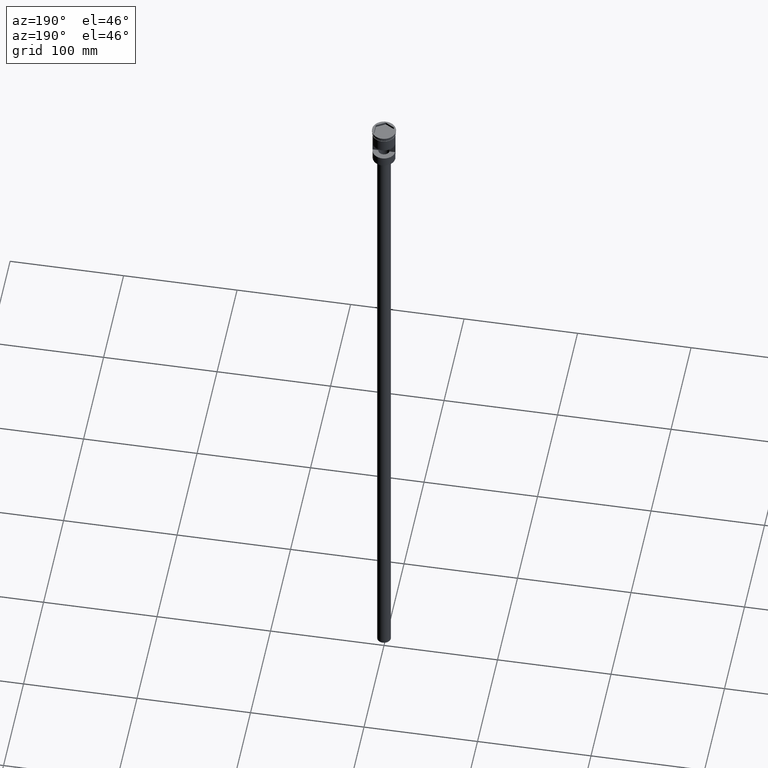
[diagram: clean part render]
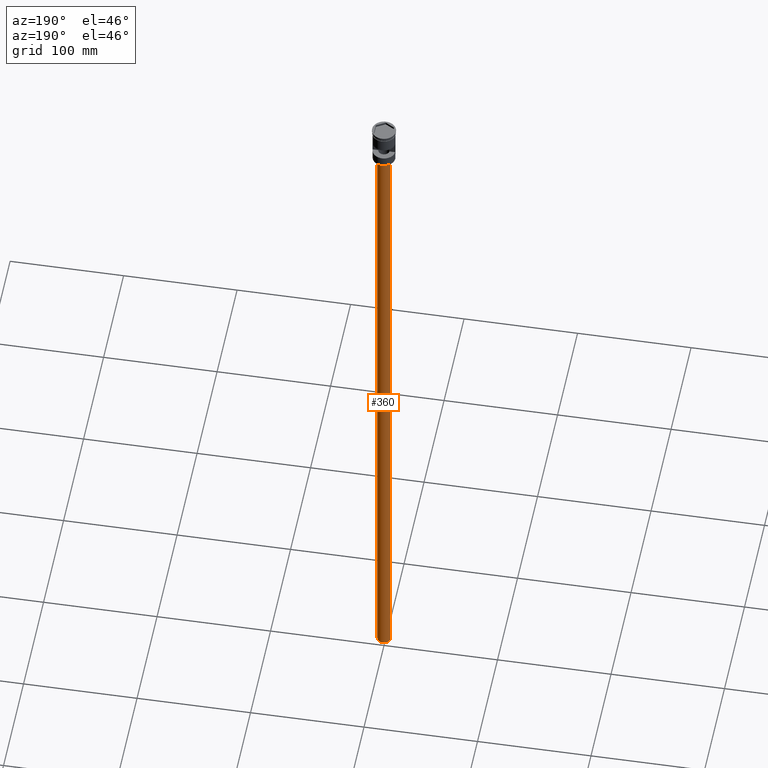
[diagram: same view with one face highlighted and labeled with its STEP entity id]
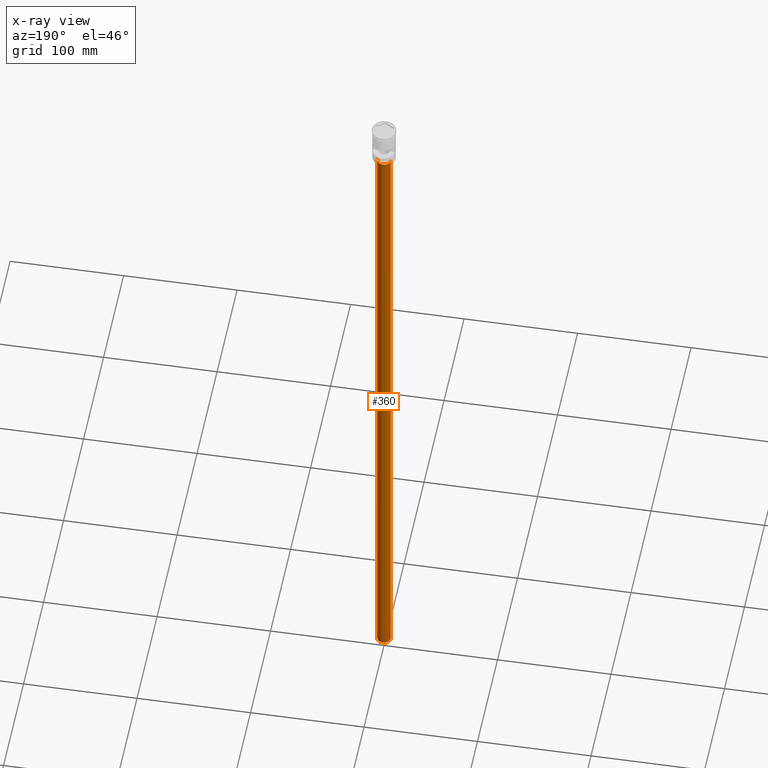
[diagram: x-ray of the same camera — body ghosted, the highlighted face saturated]
A machine part, auxiliary view. The second image highlights one B-rep face of the part: STEP entity #360.
The next image is the same camera in x-ray: the body ghosted, the highlighted face saturated — about 0% of this face is hidden behind the body in this view.
In plain terms, the highlighted cylindrical surface (edge-blend (fillet) strip) has radius 6 mm, axis along (-0, -0, 1).
Its self-contained STEP definition (entity closure, byte-faithful):
#43 = AXIS2_PLACEMENT_3D ( 'NONE', #1476, #857, #512 ) ;
#49 = CARTESIAN_POINT ( 'NONE',  ( -6.000000000000000888, 7.347880794884120722E-16, -37.00000000000000000 ) ) ;
#51 = CARTESIAN_POINT ( 'NONE',  ( 6.000000000000000888, 0.000000000000000000, -634.0000000000000000 ) ) ;
#74 = ORIENTED_EDGE ( 'NONE', *, *, #717, .T. ) ;
#135 = AXIS2_PLACEMENT_3D ( 'NONE', #897, #771, #1279 ) ;
#215 = LINE ( 'NONE', #226, #490 ) ;
#226 = CARTESIAN_POINT ( 'NONE',  ( 6.000000000000000888, 0.000000000000000000, -634.0000000000000000 ) ) ;
#313 = VERTEX_POINT ( 'NONE', #49 ) ;
#324 = CARTESIAN_POINT ( 'NONE',  ( 6.000000000000000888, 0.000000000000000000, -37.00000000000000000 ) ) ;
#336 = VECTOR ( 'NONE', #1238, 1000.000000000000000 ) ;
#360 = ADVANCED_FACE ( 'NONE', ( #1142 ), #405, .T. ) ;
#405 = CYLINDRICAL_SURFACE ( 'NONE', #924, 6.000000000000000888 ) ;
#417 = CIRCLE ( 'NONE', #135, 6.000000000000000888 ) ;
#426 = CARTESIAN_POINT ( 'NONE',  ( -6.000000000000000888, 7.347880794884120722E-16, -634.0000000000000000 ) ) ;
#430 = DIRECTION ( 'NONE',  ( 1.000000000000000000, 0.000000000000000000, 0.000000000000000000 ) ) ;
#490 = VECTOR ( 'NONE', #1437, 1000.000000000000000 ) ;
#497 = EDGE_CURVE ( 'NONE', #1269, #1280, #215, .T. ) ;
#512 = DIRECTION ( 'NONE',  ( -1.000000000000000000, 0.000000000000000000, 0.000000000000000000 ) ) ;
#646 = DIRECTION ( 'NONE',  ( -0.000000000000000000, -0.000000000000000000, 1.000000000000000000 ) ) ;
#717 = EDGE_CURVE ( 'NONE', #1315, #313, #1116, .T. ) ;
#751 = CARTESIAN_POINT ( 'NONE',  ( -6.000000000000000888, 7.347880794884120722E-16, -634.0000000000000000 ) ) ;
#771 = DIRECTION ( 'NONE',  ( 0.000000000000000000, 0.000000000000000000, -1.000000000000000000 ) ) ;
#857 = DIRECTION ( 'NONE',  ( 0.000000000000000000, 0.000000000000000000, -1.000000000000000000 ) ) ;
#864 = EDGE_LOOP ( 'NONE', ( #1205, #74, #1570, #1021 ) ) ;
#897 = CARTESIAN_POINT ( 'NONE',  ( 0.000000000000000000, 0.000000000000000000, -634.0000000000000000 ) ) ;
#924 = AXIS2_PLACEMENT_3D ( 'NONE', #1247, #646, #430 ) ;
#1021 = ORIENTED_EDGE ( 'NONE', *, *, #497, .F. ) ;
#1093 = EDGE_CURVE ( 'NONE', #313, #1280, #1220, .T. ) ;
#1116 = LINE ( 'NONE', #751, #336 ) ;
#1142 = FACE_OUTER_BOUND ( 'NONE', #864, .T. ) ;
#1205 = ORIENTED_EDGE ( 'NONE', *, *, #1228, .F. ) ;
#1220 = CIRCLE ( 'NONE', #43, 6.000000000000000888 ) ;
#1228 = EDGE_CURVE ( 'NONE', #1315, #1269, #417, .T. ) ;
#1238 = DIRECTION ( 'NONE',  ( -0.000000000000000000, -0.000000000000000000, 1.000000000000000000 ) ) ;
#1247 = CARTESIAN_POINT ( 'NONE',  ( 0.000000000000000000, 0.000000000000000000, -634.0000000000000000 ) ) ;
#1269 = VERTEX_POINT ( 'NONE', #51 ) ;
#1279 = DIRECTION ( 'NONE',  ( -1.000000000000000000, 0.000000000000000000, 0.000000000000000000 ) ) ;
#1280 = VERTEX_POINT ( 'NONE', #324 ) ;
#1315 = VERTEX_POINT ( 'NONE', #426 ) ;
#1437 = DIRECTION ( 'NONE',  ( -0.000000000000000000, -0.000000000000000000, 1.000000000000000000 ) ) ;
#1476 = CARTESIAN_POINT ( 'NONE',  ( 0.000000000000000000, 0.000000000000000000, -37.00000000000000000 ) ) ;
#1570 = ORIENTED_EDGE ( 'NONE', *, *, #1093, .T. ) ;